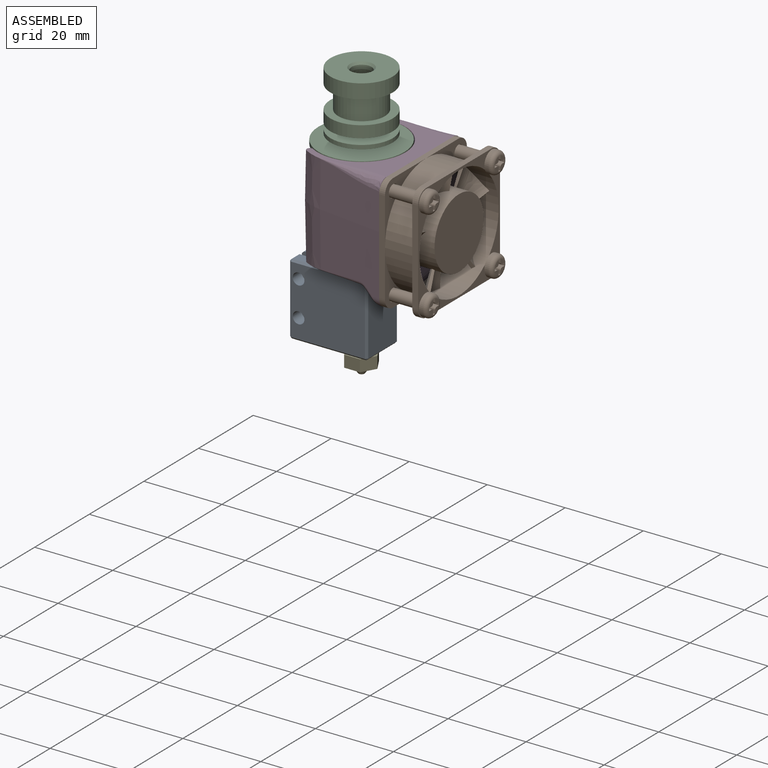
[diagram: assembled view]
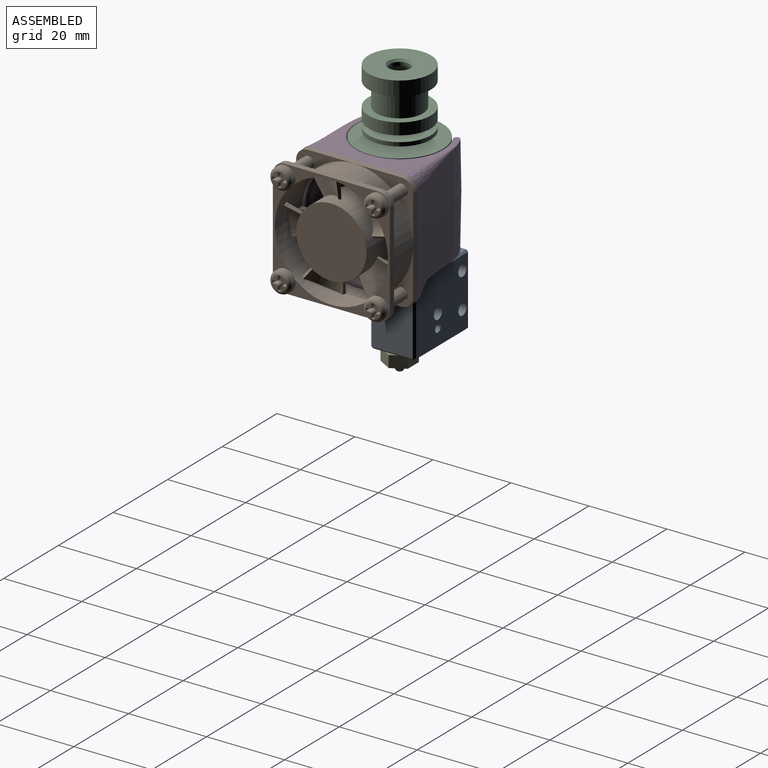
[diagram: assembled view, second angle]
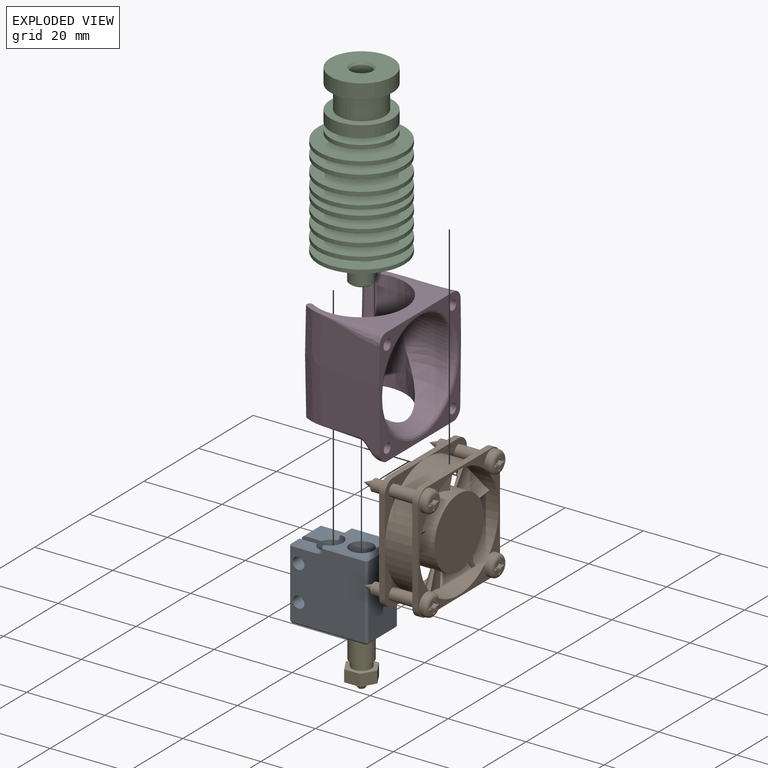
[diagram: exploded view]
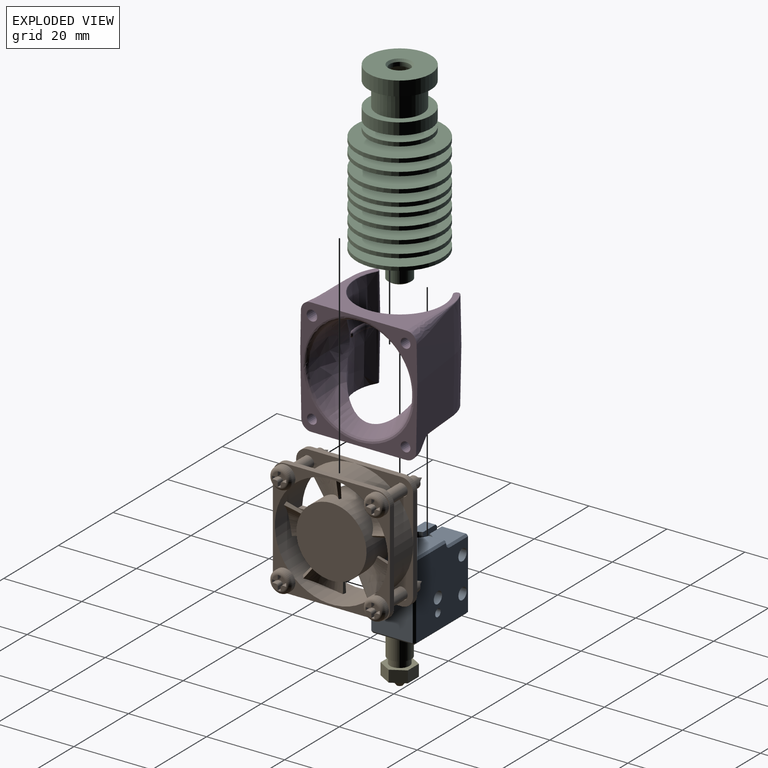
[diagram: exploded view, second angle]
ASSEMBLY  parts=5 mates=4
PART A: 53 faces, bbox 20x11.5x20 mm
  f0: plane 17.5x6.2mm, normal (-1,0,0), area 108.5mm2, adj f14,f46,f49,f52
  f1: plane 19x10.5mm, normal (0,0,-1), area 134.8mm2, adj f13,f14,f15,f16,f32,f37,f43,f48
  f2: plane 6.7x2.7mm, normal (0,0,1), area 15mm2, adj f3,f13,f15,f26,f27
  f3: cylinder r=0.8mm len=0.8mm, axis (0,1,0), area 0.6mm2, adj f2,f4,f15,f25
  f4: cylinder r=0.7mm len=0.7mm, axis (0,1,0), area 0.5mm2, adj f3,f5,f15,f28
  f5: plane 10.8x10.5mm, normal (0,0,1), area 74.7mm2, adj f4,f10,f15,f16,f30,f35,f38
  f6: plane 19x10.5mm, normal (1,0,0), area 199.5mm2, adj f35,f36,f42,f43
  f7: plane 17.5x2.7mm, normal (-1,0,0), area 47.2mm2, adj f13,f27,f31,f32
  f8: plane 6.7x6.2mm, normal (0,0,1), area 38.4mm2, adj f9,f14,f15,f46,f47
  f9: cylinder r=0.8mm len=4.06mm, axis (0,1,0), area 5mm2, adj f8,f10,f15,f44
  f10: cylinder r=0.7mm len=4.03mm, axis (0,1,0), area 4.4mm2, adj f5,f9,f15,f41
  f11: plane 19x19mm, normal (0,-1,0), area 335.2mm2, adj f19,f20,f25,f26,f28,f30,f31,f36
  f12: plane 19x19mm, normal (0,1,0), area 325mm2, adj f17,f18,f21,f23,f38,f41,f42,f44
  f13: plane 18.5x5.06mm, normal (0,1,0), area 79.2mm2, adj f1,f2,f7,f15,f19,f20,f27,f32
  f14: plane 18.5x5.06mm, normal (0,-1,0), area 79.2mm2, adj f0,f1,f8,f15,f17,f18,f46,f49
  f15: cylinder r=3.05mm len=20mm, axis (0,0,-1), area 339mm2, adj f1,f2,f3,f4,f5,f8,f9,f10
  f16: cylinder r=3mm len=20mm, axis (0,0,-1), area 377mm2, adj f1,f5
  f17: cylinder r=1.5mm len=6.7mm, axis (0,1,0), area 63.1mm2, adj f12,f14
  f18: cylinder r=1.5mm len=6.7mm, axis (0,1,0), area 63.1mm2, adj f12,f14
  f19: cylinder r=1.5mm len=3.2mm, axis (0,1,0), area 30.2mm2, adj f11,f13
  f20: cylinder r=1.5mm len=3.2mm, axis (0,1,0), area 30.2mm2, adj f11,f13
  f21: cylinder r=1.5mm len=3.5mm, axis (0,1,0), area 33mm2, adj f12,f22
  f22: plane 3x3mm, normal (0,1,0), area 7.1mm2, adj f21
  f23: cylinder r=1mm len=2mm, axis (0,1,0), area 12.6mm2, adj f12,f24
  f24: plane 2x2mm, normal (0,1,0), area 3.1mm2, adj f23
  f25: cone r=0.8mm half-angle=45deg, axis (0,-1,0), area 1.2mm2, adj f3,f11,f26,f28
  f26: plane 6.7x0.5mm, normal (0,-0.71,0.71), area 4.7mm2, adj f2,f11,f25,f29
  f27: plane 2.7x0.5mm, normal (-0.71,0,0.71), area 1.9mm2, adj f2,f7,f13,f29
  f28: cone r=0.2mm half-angle=45deg, axis (0,1,0), area 0.5mm2, adj f4,f11,f25,f30
  f29: plane 0.5x0.5mm, normal (-0.58,-0.58,0.58), area 0.2mm2, adj f26,f27,f31
  f30: plane 10.8x0.5mm, normal (0,-0.71,0.71), area 7.6mm2, adj f5,f11,f28,f33
  f31: plane 17.5x0.5mm, normal (-0.71,-0.71,0), area 12.4mm2, adj f7,f11,f29,f34
  f32: plane 2.7x0.5mm, normal (-0.71,0,-0.71), area 1.9mm2, adj f1,f7,f13,f34
  f33: plane 0.5x0.5mm, normal (0.58,-0.58,0.58), area 0.2mm2, adj f30,f35,f36
  f34: plane 0.5x0.5mm, normal (-0.58,-0.58,-0.58), area 0.2mm2, adj f31,f32,f37
  f35: plane 10.5x0.5mm, normal (0.71,0,0.71), area 7.4mm2, adj f5,f6,f33,f39
  f36: plane 19x0.5mm, normal (0.71,-0.71,0), area 13.4mm2, adj f6,f11,f33,f40
  f37: plane 19x0.5mm, normal (0,-0.71,-0.71), area 13.4mm2, adj f1,f11,f34,f40
  f38: plane 10.8x0.5mm, normal (0,0.71,0.71), area 7.6mm2, adj f5,f12,f39,f41
  f39: plane 0.5x0.5mm, normal (0.58,0.58,0.58), area 0.2mm2, adj f35,f38,f42
  f40: plane 0.5x0.5mm, normal (0.58,-0.58,-0.58), area 0.2mm2, adj f36,f37,f43
  f41: cone r=0.7mm half-angle=45deg, axis (0,-1,0), area 0.5mm2, adj f10,f12,f38,f44
  f42: plane 19x0.5mm, normal (0.71,0.71,0), area 13.4mm2, adj f6,f12,f39,f45
  f43: plane 10.5x0.5mm, normal (0.71,0,-0.71), area 7.4mm2, adj f1,f6,f40,f45
  f44: cone r=1.3mm half-angle=45deg, axis (0,1,0), area 1.2mm2, adj f9,f12,f41,f47
  f45: plane 0.5x0.5mm, normal (0.58,0.58,-0.58), area 0.2mm2, adj f42,f43,f48
  f46: plane 6.2x0.5mm, normal (-0.71,0,0.71), area 4.4mm2, adj f0,f8,f14,f50
  f47: plane 6.7x0.5mm, normal (0,0.71,0.71), area 4.7mm2, adj f8,f12,f44,f50
  f48: plane 19x0.5mm, normal (0,0.71,-0.71), area 13.4mm2, adj f1,f12,f45,f51
  f49: plane 6.2x0.5mm, normal (-0.71,0,-0.71), area 4.4mm2, adj f0,f1,f14,f51
  f50: plane 0.5x0.5mm, normal (-0.58,0.58,0.58), area 0.2mm2, adj f46,f47,f52
  f51: plane 0.5x0.5mm, normal (-0.58,0.58,-0.58), area 0.2mm2, adj f48,f49,f52
  f52: plane 17.5x0.5mm, normal (-0.71,0.71,0), area 12.4mm2, adj f0,f12,f50,f51
PART B: 184 faces, bbox 18.1x30.1x30.1 mm
  f0: torus R=1.75mm, axis (-1,0,0), area 23.3mm2, adj f1,f2,f3,f4,f5,f7,f8,f9
  f1: cylinder r=2.75mm len=5.5mm, axis (1,0,0), area 17.3mm2, adj f0,f6,f110
  f2: plane 1.34x1.34mm, normal (-1,0,0), area 1.2mm2, adj f0,f13,f14,f23
  f3: plane 1.34x1.34mm, normal (-1,0,0), area 1.2mm2, adj f0,f10,f11,f22
  f4: plane 1.34x1.34mm, normal (-1,0,0), area 1.2mm2, adj f0,f7,f8,f21
  f5: plane 1.34x1.34mm, normal (-1,0,0), area 1.2mm2, adj f0,f16,f17,f20
  f6: plane 1.58x1.58mm, normal (1,0,0), area 0.4mm2, adj f1,f108
  f7: plane 1.8x0.88mm, normal (0,0,-1), area 1.6mm2, adj f0,f4,f18,f19,f21
  f8: plane 1.8x0.88mm, normal (0,-1,0), area 1.6mm2, adj f0,f4,f9,f19,f21
  f9: plane 1.87x0.81mm, normal (0,0,-1), area 1.3mm2, adj f0,f8,f10,f19
  f10: plane 1.8x0.88mm, normal (0,1,0), area 1.6mm2, adj f0,f3,f9,f19,f22
  f11: plane 1.8x0.88mm, normal (0,0,-1), area 1.6mm2, adj f0,f3,f12,f19,f22
  f12: plane 1.84x0.78mm, normal (0,1,0), area 1.3mm2, adj f0,f11,f13,f19
  f13: plane 1.8x0.88mm, normal (0,0,1), area 1.6mm2, adj f0,f2,f12,f19,f23
  f14: plane 1.8x0.88mm, normal (0,1,0), area 1.6mm2, adj f0,f2,f15,f19,f23
  f15: plane 1.87x0.81mm, normal (0,0,1), area 1.3mm2, adj f0,f14,f16,f19
  f16: plane 1.8x0.88mm, normal (0,-1,0), area 1.6mm2, adj f0,f5,f15,f19,f20
  f17: plane 1.8x0.88mm, normal (0,0,1), area 1.6mm2, adj f0,f5,f18,f19,f20
  f18: plane 1.84x0.78mm, normal (0,-1,0), area 1.3mm2, adj f0,f7,f17,f19
  f19: plane 3.6x3.6mm, normal (-1,0,0), area 5mm2, adj f7,f8,f9,f10,f11,f12,f13,f14
  f20: cylinder r=0.55mm len=1.8mm, axis (-1,0,0), area 1.6mm2, adj f5,f16,f17,f19
  f21: cylinder r=0.55mm len=1.8mm, axis (-1,0,0), area 1.6mm2, adj f4,f7,f8,f19
  f22: cylinder r=0.55mm len=1.8mm, axis (-1,0,0), area 1.6mm2, adj f3,f10,f11,f19
  f23: cylinder r=0.55mm len=1.8mm, axis (-1,0,0), area 1.6mm2, adj f2,f13,f14,f19
  f24: torus R=1.75mm, axis (-1,0,0), area 23.3mm2, adj f25,f26,f27,f28,f29,f31,f32,f33
  f25: cylinder r=2.75mm len=5.5mm, axis (1,0,0), area 17.3mm2, adj f24,f30,f110
  f26: plane 1.34x1.34mm, normal (-1,0,0), area 1.2mm2, adj f24,f37,f38,f47
  f27: plane 1.34x1.34mm, normal (-1,0,0), area 1.2mm2, adj f24,f34,f35,f46
  f28: plane 1.34x1.34mm, normal (-1,0,0), area 1.2mm2, adj f24,f31,f32,f45
  f29: plane 1.34x1.34mm, normal (-1,0,0), area 1.2mm2, adj f24,f40,f41,f44
  f30: plane 1.58x1.58mm, normal (1,0,0), area 0.4mm2, adj f25,f108
  f31: plane 1.8x0.88mm, normal (0,0,-1), area 1.6mm2, adj f24,f28,f42,f43,f45
  f32: plane 1.8x0.88mm, normal (0,-1,0), area 1.6mm2, adj f24,f28,f33,f43,f45
  f33: plane 1.87x0.81mm, normal (0,0,-1), area 1.3mm2, adj f24,f32,f34,f43
  f34: plane 1.8x0.88mm, normal (0,1,0), area 1.6mm2, adj f24,f27,f33,f43,f46
  f35: plane 1.8x0.88mm, normal (0,0,-1), area 1.6mm2, adj f24,f27,f36,f43,f46
  f36: plane 1.84x0.78mm, normal (0,1,0), area 1.3mm2, adj f24,f35,f37,f43
  f37: plane 1.8x0.88mm, normal (0,0,1), area 1.6mm2, adj f24,f26,f36,f43,f47
  f38: plane 1.8x0.88mm, normal (0,1,0), area 1.6mm2, adj f24,f26,f39,f43,f47
  f39: plane 1.87x0.81mm, normal (0,0,1), area 1.3mm2, adj f24,f38,f40,f43
  f40: plane 1.8x0.88mm, normal (0,-1,0), area 1.6mm2, adj f24,f29,f39,f43,f44
  f41: plane 1.8x0.88mm, normal (0,0,1), area 1.6mm2, adj f24,f29,f42,f43,f44
  f42: plane 1.84x0.78mm, normal (0,-1,0), area 1.3mm2, adj f24,f31,f41,f43
  f43: plane 3.6x3.6mm, normal (-1,0,0), area 5mm2, adj f31,f32,f33,f34,f35,f36,f37,f38
  f44: cylinder r=0.55mm len=1.8mm, axis (-1,0,0), area 1.6mm2, adj f29,f40,f41,f43
  f45: cylinder r=0.55mm len=1.8mm, axis (-1,0,0), area 1.6mm2, adj f28,f31,f32,f43
  f46: cylinder r=0.55mm len=1.8mm, axis (-1,0,0), area 1.6mm2, adj f27,f34,f35,f43
  f47: cylinder r=0.55mm len=1.8mm, axis (-1,0,0), area 1.6mm2, adj f26,f37,f38,f43
  f48: torus R=1.75mm, axis (-1,0,0), area 23.3mm2, adj f49,f50,f51,f52,f53,f55,f56,f57
  f49: cylinder r=2.75mm len=5.5mm, axis (1,0,0), area 17.3mm2, adj f48,f54,f110
  f50: plane 1.34x1.34mm, normal (-1,0,0), area 1.2mm2, adj f48,f61,f62,f71
  f51: plane 1.34x1.34mm, normal (-1,0,0), area 1.2mm2, adj f48,f58,f59,f70
  f52: plane 1.34x1.34mm, normal (-1,0,0), area 1.2mm2, adj f48,f55,f56,f69
  f53: plane 1.34x1.34mm, normal (-1,0,0), area 1.2mm2, adj f48,f64,f65,f68
  f54: plane 1.58x1.58mm, normal (1,0,0), area 0.4mm2, adj f49,f108
  f55: plane 1.8x0.88mm, normal (0,0,-1), area 1.6mm2, adj f48,f52,f66,f67,f69
  f56: plane 1.8x0.88mm, normal (0,-1,0), area 1.6mm2, adj f48,f52,f57,f67,f69
  f57: plane 1.87x0.81mm, normal (0,0,-1), area 1.3mm2, adj f48,f56,f58,f67
  f58: plane 1.8x0.88mm, normal (0,1,0), area 1.6mm2, adj f48,f51,f57,f67,f70
  f59: plane 1.8x0.88mm, normal (0,0,-1), area 1.6mm2, adj f48,f51,f60,f67,f70
  f60: plane 1.84x0.78mm, normal (0,1,0), area 1.3mm2, adj f48,f59,f61,f67
  f61: plane 1.8x0.88mm, normal (0,0,1), area 1.6mm2, adj f48,f50,f60,f67,f71
  f62: plane 1.8x0.88mm, normal (0,1,0), area 1.6mm2, adj f48,f50,f63,f67,f71
  f63: plane 1.87x0.81mm, normal (0,0,1), area 1.3mm2, adj f48,f62,f64,f67
  f64: plane 1.8x0.88mm, normal (0,-1,0), area 1.6mm2, adj f48,f53,f63,f67,f68
  f65: plane 1.8x0.88mm, normal (0,0,1), area 1.6mm2, adj f48,f53,f66,f67,f68
  f66: plane 1.84x0.78mm, normal (0,-1,0), area 1.3mm2, adj f48,f55,f65,f67
  f67: plane 3.6x3.6mm, normal (-1,0,0), area 5mm2, adj f55,f56,f57,f58,f59,f60,f61,f62
  f68: cylinder r=0.55mm len=1.8mm, axis (-1,0,0), area 1.6mm2, adj f53,f64,f65,f67
  f69: cylinder r=0.55mm len=1.8mm, axis (-1,0,0), area 1.6mm2, adj f52,f55,f56,f67
  f70: cylinder r=0.55mm len=1.8mm, axis (-1,0,0), area 1.6mm2, adj f51,f58,f59,f67
  f71: cylinder r=0.55mm len=1.8mm, axis (-1,0,0), area 1.6mm2, adj f50,f61,f62,f67
  f72: torus R=1.75mm, axis (-1,0,0), area 23.3mm2, adj f73,f74,f75,f76,f77,f79,f80,f81
  f73: cylinder r=2.75mm len=5.5mm, axis (1,0,0), area 17.3mm2, adj f72,f78,f110
  f74: plane 1.34x1.34mm, normal (-1,0,0), area 1.2mm2, adj f72,f85,f86,f95
  f75: plane 1.34x1.34mm, normal (-1,0,0), area 1.2mm2, adj f72,f82,f83,f94
  f76: plane 1.34x1.34mm, normal (-1,0,0), area 1.2mm2, adj f72,f79,f80,f93
  f77: plane 1.34x1.34mm, normal (-1,0,0), area 1.2mm2, adj f72,f88,f89,f92
  f78: plane 1.58x1.58mm, normal (1,0,0), area 0.4mm2, adj f73,f108
  f79: plane 1.8x0.88mm, normal (0,0,-1), area 1.6mm2, adj f72,f76,f90,f91,f93
  f80: plane 1.8x0.88mm, normal (0,-1,0), area 1.6mm2, adj f72,f76,f81,f91,f93
  f81: plane 1.87x0.81mm, normal (0,0,-1), area 1.3mm2, adj f72,f80,f82,f91
  f82: plane 1.8x0.88mm, normal (0,1,0), area 1.6mm2, adj f72,f75,f81,f91,f94
  f83: plane 1.8x0.88mm, normal (0,0,-1), area 1.6mm2, adj f72,f75,f84,f91,f94
  f84: plane 1.84x0.78mm, normal (0,1,0), area 1.3mm2, adj f72,f83,f85,f91
  f85: plane 1.8x0.88mm, normal (0,0,1), area 1.6mm2, adj f72,f74,f84,f91,f95
  f86: plane 1.8x0.88mm, normal (0,1,0), area 1.6mm2, adj f72,f74,f87,f91,f95
  f87: plane 1.87x0.81mm, normal (0,0,1), area 1.3mm2, adj f72,f86,f88,f91
  f88: plane 1.8x0.88mm, normal (0,-1,0), area 1.6mm2, adj f72,f77,f87,f91,f92
  f89: plane 1.8x0.88mm, normal (0,0,1), area 1.6mm2, adj f72,f77,f90,f91,f92
  f90: plane 1.84x0.78mm, normal (0,-1,0), area 1.3mm2, adj f72,f79,f89,f91
  f91: plane 3.6x3.6mm, normal (-1,0,0), area 5mm2, adj f79,f80,f81,f82,f83,f84,f85,f86
  f92: cylinder r=0.55mm len=1.8mm, axis (-1,0,0), area 1.6mm2, adj f77,f88,f89,f91
  f93: cylinder r=0.55mm len=1.8mm, axis (-1,0,0), area 1.6mm2, adj f76,f79,f80,f91
  f94: cylinder r=0.55mm len=1.8mm, axis (-1,0,0), area 1.6mm2, adj f75,f82,f83,f91
  f95: cylinder r=0.55mm len=1.8mm, axis (-1,0,0), area 1.6mm2, adj f74,f85,f86,f91
  f96: plane 5.52x4.06mm, normal (-1,0,0), area 8.3mm2, adj f98,f108,f138,f139
  f97: plane 5.53x1.5mm, normal (-1,0,0), area 8.3mm2, adj f98,f108,f135,f136
  f98: cylinder r=9mm len=18mm, axis (1,0,0), area 538.6mm2, adj f96,f97,f109,f135,f136,f137,f138,f139
  f99: cylinder r=1.6mm len=3.2mm, axis (1,0,0), area 15.1mm2, adj f109,f111
  f100: cylinder r=1.6mm len=3.2mm, axis (1,0,0), area 15.1mm2, adj f112,f183
  f101: cylinder r=1.6mm len=3.2mm, axis (1,0,0), area 15.1mm2, adj f109,f113
  f102: cylinder r=1.6mm len=3.2mm, axis (1,0,0), area 15.1mm2, adj f114,f179
  f103: cylinder r=1.6mm len=3.2mm, axis (1,0,0), area 15.1mm2, adj f109,f115
  f104: cylinder r=1.6mm len=3.2mm, axis (1,0,0), area 15.1mm2, adj f116,f175
  f105: cylinder r=1.6mm len=3.2mm, axis (1,0,0), area 15.1mm2, adj f109,f117
  f106: cylinder r=1.6mm len=3.2mm, axis (1,0,0), area 15.1mm2, adj f118,f171
  f107: cylinder r=15mm len=30mm, axis (-1,0,0), area 659.7mm2, adj f111,f112,f113,f114,f115,f116,f117,f118
  f108: cylinder r=14.5mm len=29mm, axis (1,0,0), area 904.3mm2, adj f6,f30,f54,f78,f96,f97,f109,f110
  f109: plane 30x30mm, normal (1,0,0), area 478.8mm2, adj f98,f99,f101,f103,f105,f108,f119,f121
  f110: plane 30x30mm, normal (-1,0,0), area 138.4mm2, adj f1,f25,f49,f73,f108,f120,f122,f124
  f111: plane 15x15mm, normal (-1,0,0), area 38.3mm2, adj f99,f107,f123,f125,f127
  f112: plane 15x15mm, normal (1,0,0), area 38.3mm2, adj f100,f107,f124,f126,f128
  f113: plane 15x15mm, normal (-1,0,0), area 38.3mm2, adj f101,f107,f119,f121,f123
  f114: plane 15x15mm, normal (1,0,0), area 38.3mm2, adj f102,f107,f120,f122,f124
  f115: plane 15x15mm, normal (-1,0,0), area 38.3mm2, adj f103,f107,f119,f131,f133
  f116: plane 15x15mm, normal (1,0,0), area 38.3mm2, adj f104,f107,f120,f132,f134
  f117: plane 15x15mm, normal (-1,0,0), area 38.3mm2, adj f105,f107,f127,f129,f131
  f118: plane 15x15mm, normal (1,0,0), area 38.3mm2, adj f106,f107,f128,f130,f132
  f119: plane 24x1.5mm, normal (0,1,0), area 36mm2, adj f109,f113,f115,f121,f133
  f120: plane 24x1.5mm, normal (0,1,0), area 36mm2, adj f110,f114,f116,f122,f134
  f121: cylinder r=3mm len=3mm, axis (1,0,0), area 7.1mm2, adj f109,f113,f119,f123
  f122: cylinder r=3mm len=3mm, axis (1,0,0), area 7.1mm2, adj f110,f114,f120,f124
  f123: plane 24x1.5mm, normal (0,0,1), area 36mm2, adj f109,f111,f113,f121,f125
  f124: plane 24x1.5mm, normal (0,0,1), area 36mm2, adj f110,f112,f114,f122,f126
  f125: cylinder r=3mm len=3mm, axis (1,0,0), area 7.1mm2, adj f109,f111,f123,f127
  f126: cylinder r=3mm len=3mm, axis (1,0,0), area 7.1mm2, adj f110,f112,f124,f128
  f127: plane 24x1.5mm, normal (0,-1,0), area 36mm2, adj f109,f111,f117,f125,f129
  f128: plane 24x1.5mm, normal (0,-1,0), area 36mm2, adj f110,f112,f118,f126,f130
  f129: cylinder r=3mm len=3mm, axis (1,0,0), area 7.1mm2, adj f109,f117,f127,f131
  f130: cylinder r=3mm len=3mm, axis (1,0,0), area 7.1mm2, adj f110,f118,f128,f132
  f131: plane 24x1.5mm, normal (0,0,-1), area 36mm2, adj f109,f115,f117,f129,f133
  f132: plane 24x1.5mm, normal (0,0,-1), area 36mm2, adj f110,f116,f118,f130,f134
  f133: cylinder r=3mm len=3mm, axis (1,0,0), area 7.1mm2, adj f109,f115,f119,f131
  f134: cylinder r=3mm len=3mm, axis (1,0,0), area 7.1mm2, adj f110,f116,f120,f132
  f135: plane 5.51x1.5mm, normal (0,0,1), area 8.3mm2, adj f97,f98,f108,f109
  f136: plane 5.51x1.5mm, normal (0,0,-1), area 8.3mm2, adj f97,f98,f108,f109
  f137: plane 5.52x4.06mm, normal (-1,0,0), area 8.3mm2, adj f98,f108,f140,f141
  f138: plane 4.77x2.76mm, normal (0,-0.87,-0.5), area 8.3mm2, adj f96,f98,f108,f109
  f139: plane 4.77x2.76mm, normal (0,0.87,0.5), area 8.3mm2, adj f96,f98,f108,f109
  f140: plane 4.77x2.76mm, normal (0,0.87,-0.5), area 8.3mm2, adj f98,f108,f109,f137
  f141: plane 4.77x2.76mm, normal (0,-0.87,0.5), area 8.3mm2, adj f98,f108,f109,f137
  f142: cylinder r=14mm len=8.69mm, axis (1,0,0), area 9.8mm2, adj f159,f160,f161,f162
  f143: bspline ~8.84x6.37mm, area 35.5mm2, adj f98,f144,f145,f167
  f144: plane 4.82x1.59mm, normal (-0.16,-0.28,-0.95), area 3.9mm2, adj f98,f143,f146,f167
  f145: plane 4.9x2.23mm, normal (-0.73,-0.34,0.6), area 3.9mm2, adj f98,f143,f146,f167
  f146: bspline ~9.26x5.1mm, area 38.4mm2, adj f98,f144,f145,f167
  f147: bspline ~8.2x6.6mm, area 36.8mm2, adj f98,f148,f149,f166
  f148: plane 4.17x2.98mm, normal (-0.16,0.81,-0.56), area 3.9mm2, adj f98,f147,f150,f166
  f149: plane 5.01x1.38mm, normal (-0.73,-0.67,-0.14), area 3.9mm2, adj f98,f147,f150,f166
  f150: bspline ~8.93x6.64mm, area 40.1mm2, adj f98,f148,f149,f166
  f151: bspline ~8.66x7.89mm, area 36.8mm2, adj f98,f152,f153,f165
  f152: plane 4.07x3.11mm, normal (-0.16,0.78,0.6), area 3.9mm2, adj f98,f151,f154,f165
  f153: plane 4.96x1.95mm, normal (-0.73,-0.07,-0.68), area 3.9mm2, adj f98,f151,f154,f165
  f154: bspline ~9.01x8.16mm, area 40.1mm2, adj f98,f152,f153,f165
  f155: bspline ~8.4x8.29mm, area 36.8mm2, adj f98,f156,f157,f164
  f156: plane 4.77x1.74mm, normal (-0.16,-0.33,0.93), area 3.9mm2, adj f98,f155,f158,f164
  f157: plane 4.45x3.29mm, normal (-0.73,0.63,-0.28), area 3.9mm2, adj f98,f155,f158,f164
  f158: bspline ~8.89x8.5mm, area 40.1mm2, adj f98,f156,f157,f164
  f159: bspline ~8.42x7.69mm, area 39.2mm2, adj f98,f142,f160,f161
  f160: plane 5x1.07mm, normal (-0.16,-0.99,-0.03), area 3.9mm2, adj f98,f142,f159,f162
  f161: plane 4.3x3.51mm, normal (-0.73,0.46,0.51), area 3.9mm2, adj f98,f142,f159,f162
  f162: bspline ~9.24x7.94mm, area 43.3mm2, adj f98,f142,f160,f161
  f163: plane 18x18mm, normal (-1,0,0), area 254.5mm2, adj f98
  f164: cylinder r=14mm len=7.29mm, axis (1,0,0), area 10mm2, adj f155,f156,f157,f158
  f165: cylinder r=14mm len=7.65mm, axis (1,0,0), area 10mm2, adj f151,f152,f153,f154
  f166: cylinder r=14mm len=8.88mm, axis (1,0,0), area 10mm2, adj f147,f148,f149,f150
  f167: cylinder r=14mm len=9.24mm, axis (1,0,0), area 10mm2, adj f143,f144,f145,f146
  f168: cone r=414.21mm half-angle=22.5deg, axis (-1,0,0), area 9.9mm2, adj f169
  f169: plane 3x3mm, normal (1,0,0), area 3.3mm2, adj f168,f170
  f170: cylinder r=1.5mm len=13.34mm, axis (1,0,0), area 125.8mm2, adj f169,f171
  f171: plane 3.2x3.2mm, normal (1,0,0), area 1mm2, adj f106,f170
  f172: cone r=414.21mm half-angle=22.5deg, axis (-1,0,0), area 9.9mm2, adj f173
  f173: plane 3x3mm, normal (1,0,0), area 3.3mm2, adj f172,f174
  f174: cylinder r=1.5mm len=13.34mm, axis (1,0,0), area 125.8mm2, adj f173,f175
  f175: plane 3.2x3.2mm, normal (1,0,0), area 1mm2, adj f104,f174
  f176: cone r=414.21mm half-angle=22.5deg, axis (-1,0,0), area 9.9mm2, adj f177
  f177: plane 3x3mm, normal (1,0,0), area 3.3mm2, adj f176,f178
  f178: cylinder r=1.5mm len=13.34mm, axis (1,0,0), area 125.8mm2, adj f177,f179
  f179: plane 3.2x3.2mm, normal (1,0,0), area 1mm2, adj f102,f178
  f180: cone r=414.21mm half-angle=22.5deg, axis (-1,0,0), area 9.9mm2, adj f181
  f181: plane 3x3mm, normal (1,0,0), area 3.3mm2, adj f180,f182
  f182: cylinder r=1.5mm len=13.34mm, axis (1,0,0), area 125.8mm2, adj f181,f183
  f183: plane 3.2x3.2mm, normal (1,0,0), area 1mm2, adj f100,f182
PART C: 58 faces, bbox 22x22x49.8 mm
  f0: cylinder r=2.05mm len=39.24mm, axis (0,0,1), area 505.4mm2, adj f1,f57
  f1: plane 4.95x4.95mm, normal (0,0,-1), area 6.1mm2, adj f0,f2
  f2: cone r=3.05mm half-angle=54.7deg, axis (0,0,1), area 12.1mm2, adj f1,f3
  f3: cylinder r=3.05mm len=6.09mm, axis (0,0,1), area 81.6mm2, adj f2,f4
  f4: cone r=2.48mm half-angle=59.8deg, axis (0,0,-1), area 11.5mm2, adj f3,f5
  f5: cylinder r=2.48mm len=4.95mm, axis (0,0,1), area 32.7mm2, adj f4,f6
  f6: plane 22.02x22.02mm, normal (0,0,-1), area 361.7mm2, adj f5,f7
  f7: cylinder r=11.01mm len=22.02mm, axis (0,0,1), area 64.5mm2, adj f6,f8
  f8: plane 22.02x22.02mm, normal (0,0,1), area 352.7mm2, adj f7,f9
  f9: cylinder r=3mm len=6mm, axis (0,0,1), area 37.7mm2, adj f8,f10
  f10: plane 22.02x22.02mm, normal (0,0,-1), area 352.7mm2, adj f9,f11
  f11: cylinder r=11.01mm len=22.02mm, axis (0,0,1), area 69.2mm2, adj f10,f12
  f12: plane 22.02x22.02mm, normal (0,0,1), area 352.7mm2, adj f11,f13
  f13: cylinder r=3mm len=6mm, axis (0,0,1), area 41.5mm2, adj f12,f14
  f14: plane 22.02x22.02mm, normal (0,0,-1), area 352.7mm2, adj f13,f15
  f15: cylinder r=11.01mm len=22.02mm, axis (0,0,1), area 69.2mm2, adj f14,f16
  f16: plane 22.02x22.02mm, normal (0,0,1), area 352.7mm2, adj f15,f17
  f17: cylinder r=3mm len=6mm, axis (0,0,1), area 41.5mm2, adj f16,f18
  f18: plane 22.02x22.02mm, normal (0,0,-1), area 352.7mm2, adj f17,f19
  f19: cylinder r=11.01mm len=22.02mm, axis (0,0,1), area 69.2mm2, adj f18,f20
  f20: plane 22.02x22.02mm, normal (0,0,1), area 352.7mm2, adj f19,f21
  f21: cylinder r=3mm len=6mm, axis (0,0,1), area 39.6mm2, adj f20,f22
  f22: plane 22x22mm, normal (0,0,-1), area 351.9mm2, adj f21,f23
  f23: cylinder r=11mm len=22mm, axis (0,0,1), area 69.1mm2, adj f22,f24
  f24: plane 22x22mm, normal (0,0,1), area 247.4mm2, adj f23,f25
  f25: cylinder r=6.5mm len=13mm, axis (0,0,1), area 57.2mm2, adj f24,f26
  f26: plane 22x22mm, normal (0,0,-1), area 247.4mm2, adj f25,f27
  f27: cylinder r=11mm len=22mm, axis (0,0,1), area 69.1mm2, adj f26,f28
  f28: plane 22x22mm, normal (0,0,1), area 351.9mm2, adj f27,f29
  f29: cylinder r=3mm len=6mm, axis (0,0,1), area 39.6mm2, adj f28,f30
  f30: plane 22x22mm, normal (0,0,-1), area 351.9mm2, adj f29,f31
  f31: cylinder r=11mm len=22mm, axis (0,0,1), area 69.1mm2, adj f30,f32
  f32: plane 22x22mm, normal (0,0,1), area 351.9mm2, adj f31,f33
  f33: cylinder r=3mm len=6mm, axis (0,0,1), area 56.5mm2, adj f32,f34
  f34: plane 22x22mm, normal (0,0,-1), area 351.9mm2, adj f33,f35
  f35: cylinder r=11mm len=22mm, axis (0,0,1), area 69.1mm2, adj f34,f36
  f36: plane 22x22mm, normal (0,0,1), area 351.9mm2, adj f35,f37
  f37: cylinder r=3mm len=6mm, axis (0,0,1), area 39.6mm2, adj f36,f38
  f38: plane 22x22mm, normal (0,0,-1), area 351.9mm2, adj f37,f39
  f39: cylinder r=11mm len=22mm, axis (0,0,1), area 69.1mm2, adj f38,f40
  f40: plane 22x22mm, normal (0,0,1), area 316.5mm2, adj f39,f41
  f41: cylinder r=4.5mm len=9mm, axis (0,0,1), area 39.4mm2, adj f40,f42
  f42: plane 16x16mm, normal (0,0,-1), area 137.4mm2, adj f41,f43
  f43: cylinder r=8mm len=16mm, axis (0,0,1), area 50.3mm2, adj f42,f44
  f44: plane 16x16mm, normal (0,0,1), area 137.4mm2, adj f43,f45
  f45: cylinder r=4.5mm len=9mm, axis (0,0,1), area 44.5mm2, adj f44,f46
  f46: plane 16x16mm, normal (0,0,-1), area 137.4mm2, adj f45,f47
  f47: cylinder r=8mm len=16mm, axis (0,0,1), area 150.8mm2, adj f46,f48
  f48: plane 16x16mm, normal (0,0,1), area 88mm2, adj f47,f49
  f49: cylinder r=6mm len=12mm, axis (0,0,1), area 226.2mm2, adj f48,f50
  f50: plane 16x16mm, normal (0,0,-1), area 88mm2, adj f49,f51
  f51: cylinder r=8mm len=16mm, axis (0,0,1), area 186mm2, adj f50,f52
  f52: plane 16x16mm, normal (0,0,1), area 172.8mm2, adj f51,f53
  f53: cone r=2.56mm half-angle=37.1deg, axis (0,0,1), area 12.9mm2, adj f52,f54
  f54: cylinder r=2.56mm len=5.11mm, axis (0,0,1), area 16.1mm2, adj f53,f55
  f55: cone r=3.54mm half-angle=23.6deg, axis (0,0,-1), area 46.9mm2, adj f54,f56
  f56: cylinder r=3.54mm len=7.08mm, axis (0,0,1), area 90.6mm2, adj f55,f57
  f57: cone r=2.05mm half-angle=29.3deg, axis (0,0,1), area 53.4mm2, adj f0,f56
PART D: 100 faces, bbox 22.6x30.3x30.3 mm
  f0: sphere r=0.5mm, area 0.2mm2, adj f1,f27,f61,f98
  f1: torus R=11mm, axis (0,0,1), area 4mm2, adj f0,f19,f28,f61,f62
  f2: sphere r=0.5mm, area 0.2mm2, adj f29,f62,f63,f64
  f3: sphere r=0.5mm, area 0.2mm2, adj f18,f32,f65,f66
  f4: sphere r=0.5mm, area 0.2mm2, adj f20,f34,f66,f68
  f5: sphere r=0.5mm, area 0.2mm2, adj f36,f71,f72
  f6: torus R=11mm, axis (0,0,1), area 4mm2, adj f7,f19,f37,f72,f73
  f7: sphere r=0.5mm, area 0.2mm2, adj f6,f38,f73
  f8: sphere r=0.5mm, area 0.3mm2, adj f45,f87,f88
  f9: sphere r=0.5mm, area 0.2mm2, adj f47,f88,f89
  f10: bspline ~26.74x26.69mm, area 545.7mm2, adj f11,f12,f21,f22,f23
  f11: cone r=11.2mm half-angle=1deg, axis (0,0,1), area 323.9mm2, adj f10,f12,f25,f26,f27,f28,f29,f30
  f12: cone r=11.27mm half-angle=1deg, axis (0,0,-1), area 369mm2, adj f10,f11,f13,f30,f31,f36,f37,f38
  f13: cone r=1mm half-angle=1deg, axis (0,0,1), area 39.2mm2, adj f12,f35,f44,f67,f86
  f14: cone r=1.35mm half-angle=1deg, axis (-1,0,0), area 49.1mm2, adj f24,f90
  f15: cone r=1.25mm half-angle=1deg, axis (-1,0,0), area 45.2mm2, adj f24,f91
  f16: cone r=1.25mm half-angle=1deg, axis (-1,0,0), area 31.8mm2, adj f24,f40,f41,f42,f76,f92
  f17: cone r=1.25mm half-angle=1deg, axis (-1,0,0), area 31.8mm2, adj f24,f42,f43,f44,f83,f93
  f18: cylinder r=0.5mm len=0.59mm, axis (0,0,1), area 0.4mm2, adj f3,f31,f89,f99
  f19: cylinder r=10.5mm len=7.09mm, axis (0,0,1), area 3.6mm2, adj f1,f6,f62,f64,f72,f98
  f20: cylinder r=0.5mm len=0.66mm, axis (0,0,1), area 0.4mm2, adj f4,f67,f87,f99
  f21: bspline ~3.21x1.31mm, area 3.9mm2, adj f10,f22,f23,f24
  f22: bspline ~28.62x17.94mm, area 49.8mm2, adj f10,f21,f23,f24
  f23: bspline ~27.81x11.6mm, area 55.3mm2, adj f10,f21,f22,f24
  f24: plane 30.14x30.14mm, normal (-1,0,0), area 228.1mm2, adj f14,f15,f16,f17,f21,f22,f23,f48
  f25: bspline ~23.08x17.12mm, area 7.3mm2, adj f11,f53,f60,f70
  f26: cone r=1mm half-angle=1deg, axis (0,0,-1), area 32.9mm2, adj f11,f39,f58,f59,f60
  f27: cylinder r=0.5mm len=0.5mm, axis (0.5,-0.87,0), area 0mm2, adj f0,f11,f28,f58,f61
  f28: plane 7.43x1.25mm, normal (0,0,1), area 0.1mm2, adj f1,f11,f27,f29,f62
  f29: cylinder r=0.5mm len=0.5mm, axis (-0.26,-0.97,0), area 0mm2, adj f2,f11,f28,f30,f63
  f30: plane 0.5x0.02mm, normal (-0.97,0.26,0), area 0mm2, adj f11,f12,f29,f36,f64
  f31: plane 0.5x0.02mm, normal (-0.97,-0.26,0), area 0mm2, adj f11,f12,f18,f32,f47
  f32: cylinder r=0.5mm len=0.5mm, axis (-0.26,0.97,0), area 0mm2, adj f3,f11,f31,f33,f65
  f33: plane 7.43x1.25mm, normal (0,0,1), area 0.1mm2, adj f11,f32,f34,f66
  f34: cylinder r=0.5mm len=0.5mm, axis (0.5,0.87,0), area 0mm2, adj f4,f11,f33,f67,f68
  f35: cone r=1mm half-angle=1deg, axis (0,0,-1), area 32.9mm2, adj f11,f13,f67,f69,f70
  f36: cylinder r=0.5mm len=0.5mm, axis (0.26,0.97,0), area 0mm2, adj f5,f12,f30,f37,f71
  f37: plane 7.43x1.25mm, normal (0,0,-1), area 0.1mm2, adj f6,f12,f36,f38,f72
  f38: cylinder r=0.5mm len=0.5mm, axis (-0.5,0.87,0), area 0mm2, adj f7,f12,f37,f58,f73
  f39: cone r=1mm half-angle=1deg, axis (0,0,1), area 39.2mm2, adj f12,f26,f40,f58,f74
  f40: plane 15.95x6.63mm, normal (0,0,-1), area 36.8mm2, adj f12,f16,f39,f41,f75,f76,f77,f92
  f41: cylinder r=2mm len=7.6mm, axis (0,1,0), area 9.4mm2, adj f12,f16,f40,f42
  f42: plane 27.08x3.26mm, normal (0.71,0,-0.71), area 103.5mm2, adj f12,f16,f17,f41,f43,f78,f79,f80
  f43: cylinder r=2mm len=7.6mm, axis (0,1,0), area 9.4mm2, adj f12,f17,f42,f44
  f44: plane 15.96x6.64mm, normal (0,0,-1), area 36.8mm2, adj f12,f13,f17,f43,f83,f84,f85,f93
  f45: cylinder r=0.5mm len=0.5mm, axis (-0.5,-0.87,0), area 0mm2, adj f8,f12,f46,f67,f87
  f46: plane 7.43x1.25mm, normal (0,0,-1), area 0.1mm2, adj f12,f45,f47,f88
  f47: cylinder r=0.5mm len=0.5mm, axis (0.26,-0.97,0), area 0mm2, adj f9,f12,f31,f46,f89
  f48: plane 24.41x0.59mm, normal (0,0,-1), area 14.3mm2, adj f24,f49,f57,f79
  f49: cylinder r=2.5mm len=2.76mm, axis (0.99,-0.13,0), area 4.5mm2, adj f24,f48,f50,f78
  f50: plane 16.77x15.93mm, normal (0.13,0.99,-0.02), area 237.2mm2, adj f24,f49,f51,f82,f84,f86,f94
  f51: plane 16.83x11.76mm, normal (0.13,0.99,0.02), area 173mm2, adj f24,f50,f52,f69
  f52: bspline ~16.92x2.78mm, area 37.1mm2, adj f24,f51,f53,f95
  f53: plane 25.33x21.92mm, normal (0,0,1), area 186mm2, adj f24,f25,f52,f54,f60,f70,f95,f96
  f54: bspline ~16.92x2.78mm, area 38.7mm2, adj f24,f53,f55,f96
  f55: plane 16.63x11.51mm, normal (0.13,-0.99,0.02), area 172mm2, adj f24,f54,f56,f59
  f56: plane 16.9x16.06mm, normal (0.13,-0.99,-0.02), area 233.7mm2, adj f24,f55,f57,f74,f75,f81,f97
  f57: cylinder r=2.5mm len=2.76mm, axis (-0.99,-0.13,0), area 4.5mm2, adj f24,f48,f56,f80
  f58: plane 0.5x0.01mm, normal (0.87,0.5,0), area 0mm2, adj f26,f27,f38,f39,f98
  f59: cone r=13mm half-angle=1deg, axis (0,0,-1), area 59.4mm2, adj f26,f55,f74,f96
  f60: bspline ~1.54x1.3mm, area 0.4mm2, adj f25,f26,f53,f96
  f61: sphere r=0.5mm, area 0.3mm2, adj f0,f1,f27
  f62: torus R=11mm, axis (0,0,1), area 1.8mm2, adj f1,f2,f19,f28,f63
  f63: sphere r=0.5mm, area 0.2mm2, adj f2,f29,f62
  f64: cylinder r=0.5mm len=0.59mm, axis (0,0,1), area 0.4mm2, adj f2,f19,f30,f71
  f65: sphere r=0.5mm, area 0.2mm2, adj f3,f32,f66
  f66: torus R=11mm, axis (0,0,1), area 5.8mm2, adj f3,f4,f33,f65,f68,f99
  f67: plane 0.5x0.01mm, normal (0.87,-0.5,0), area 0mm2, adj f13,f20,f34,f35,f45
  f68: sphere r=0.5mm, area 0.3mm2, adj f4,f34,f66
  f69: cone r=13mm half-angle=1deg, axis (0,0,-1), area 59.6mm2, adj f35,f51,f86,f95
  f70: bspline ~1.54x1.3mm, area 0.4mm2, adj f25,f35,f53,f95
  f71: sphere r=0.5mm, area 0.2mm2, adj f5,f36,f64,f72
  f72: torus R=11mm, axis (0,0,1), area 1.8mm2, adj f5,f6,f19,f37,f71
  f73: sphere r=0.5mm, area 0.2mm2, adj f6,f7,f38,f98
  f74: cone r=13mm half-angle=1deg, axis (0,0,1), area 72.5mm2, adj f39,f56,f59,f77
  f75: bspline ~10.77x1.56mm, area 9.5mm2, adj f40,f56,f77,f97
  f76: plane 1.12x0.15mm, normal (-1,0,0), area 0.1mm2, adj f16,f40
  f77: bspline ~4.8x1.62mm, area 0.6mm2, adj f40,f74,f75
  f78: bspline ~2.46x2.34mm, area 3.6mm2, adj f42,f49,f79,f82
  f79: extruded ~24.26x0.71mm, area 19mm2, adj f42,f48,f78,f80
  f80: bspline ~2.46x2.35mm, area 3.6mm2, adj f42,f57,f79,f81
  f81: bspline ~2.32x2.23mm, area 3.4mm2, adj f42,f56,f80,f97
  f82: bspline ~2.32x2.23mm, area 3.4mm2, adj f42,f50,f78,f94
  f83: plane 1.12x0.15mm, normal (-1,0,0), area 0.1mm2, adj f17,f44
  f84: bspline ~10.77x1.56mm, area 9.4mm2, adj f44,f50,f85,f94
  f85: bspline ~4.8x1.62mm, area 0.6mm2, adj f44,f84,f86
  f86: cone r=13mm half-angle=1deg, axis (0,0,1), area 72.5mm2, adj f13,f50,f69,f85
  f87: sphere r=0.5mm, area 0.2mm2, adj f8,f20,f45,f88
  f88: torus R=11mm, axis (0,0,1), area 5.8mm2, adj f8,f9,f46,f87,f89,f99
  f89: sphere r=0.5mm, area 0.2mm2, adj f9,f18,f47,f88
  f90: plane 2.5x2.5mm, normal (-1,0,0), area 4.9mm2, adj f14
  f91: plane 2.29x2.29mm, normal (-1,0,0), area 4.1mm2, adj f15
  f92: cylinder r=2mm len=1.41mm, axis (0,1,0), area 0.6mm2, adj f16,f40,f42,f97
  f93: cylinder r=2mm len=1.41mm, axis (0,1,0), area 0.6mm2, adj f17,f42,f44,f94
  f94: bspline ~2.09x1.5mm, area 2.6mm2, adj f50,f82,f84,f93
  f95: bspline ~4.82x1.7mm, area 0.9mm2, adj f52,f53,f69,f70
  f96: bspline ~4.82x1.7mm, area 1.1mm2, adj f53,f54,f59,f60
  f97: bspline ~2.09x1.5mm, area 2.6mm2, adj f56,f75,f81,f92
  f98: cylinder r=0.5mm len=0.66mm, axis (0,0,1), area 0.4mm2, adj f0,f19,f58,f73
  f99: cylinder r=10.5mm len=7.09mm, axis (0,0,1), area 3.6mm2, adj f18,f20,f66,f88
PART E: 15 faces, bbox 8.1x7x21 mm
  f0: plane 1.5x1.5mm, normal (0,0,-1), area 1.8mm2, adj f1
  f1: cone r=0.75mm half-angle=34.9deg, axis (0,0,1), area 22mm2, adj f0,f7
  f2: cylinder r=2.5mm len=5mm, axis (0,0,-1), area 23.6mm2, adj f3,f11
  f3: cone r=2.5mm half-angle=67.8deg, axis (0,0,1), area 9mm2, adj f2,f4
  f4: cylinder r=2.98mm len=14.11mm, axis (0,0,-1), area 264.4mm2, adj f3,f5
  f5: cone r=2.5mm half-angle=67.8deg, axis (0,0,-1), area 9mm2, adj f4,f6
  f6: plane 5x5mm, normal (0,0,1), area 19.6mm2, adj f5
  f7: plane 8.08x7mm, normal (0,0,-1), area 28.1mm2, adj f1,f8,f9,f10,f12,f13,f14
  f8: plane 3.5x3mm, normal (-0.87,-0.5,0), area 12.1mm2, adj f7,f9,f11,f13
  f9: plane 3.5x3mm, normal (-0.87,0.5,0), area 12.1mm2, adj f7,f8,f10,f11
  f10: plane 4.04x3mm, normal (0,1,0), area 12.1mm2, adj f7,f9,f11,f12
  f11: plane 8.08x7mm, normal (0,0,1), area 22.8mm2, adj f2,f8,f9,f10,f12,f13,f14
  f12: plane 3.5x3mm, normal (0.87,0.5,0), area 12.1mm2, adj f7,f10,f11,f14
  f13: plane 4.04x3mm, normal (0,-1,0), area 12.1mm2, adj f7,f8,f11,f14
  f14: plane 3.5x3mm, normal (0.87,-0.5,0), area 12.1mm2, adj f7,f11,f12,f13
PLACE A t=(-22.17,7,-24.31)mm
PLACE B rot(axis=(0,0,1),180deg) t=(-22.17,0,23.32)mm
PLACE C t=(-22.17,0,-9.81)mm
PLACE D rot(axis=(0,0,1),180deg) t=(-22.17,0,23.32)mm
PLACE E t=(0,0,-20.99)mm
MATE fastened A.f16 <-> E.f1  axis (0,0,-1) through (-22.17,0,-25.31)mm
MATE fastened B.f123 <-> D.f53  axis (0,0,1) through (-7.17,0,23.32)mm
MATE fastened D.f53 <-> C.f40  axis (0,0,1) through (-10.87,0,23.32)mm
MATE fastened E.f1 <-> C.f4  axis (0,0,1) through (-22.17,0,-9.81)mm
